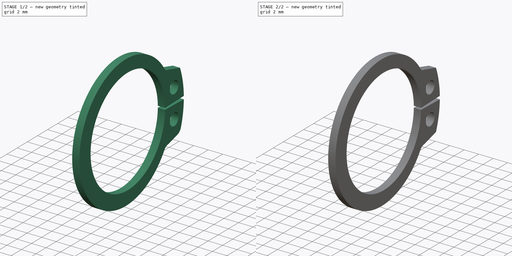
[diagram: build sequence overview — one tinted view per stage of 2, left to right]
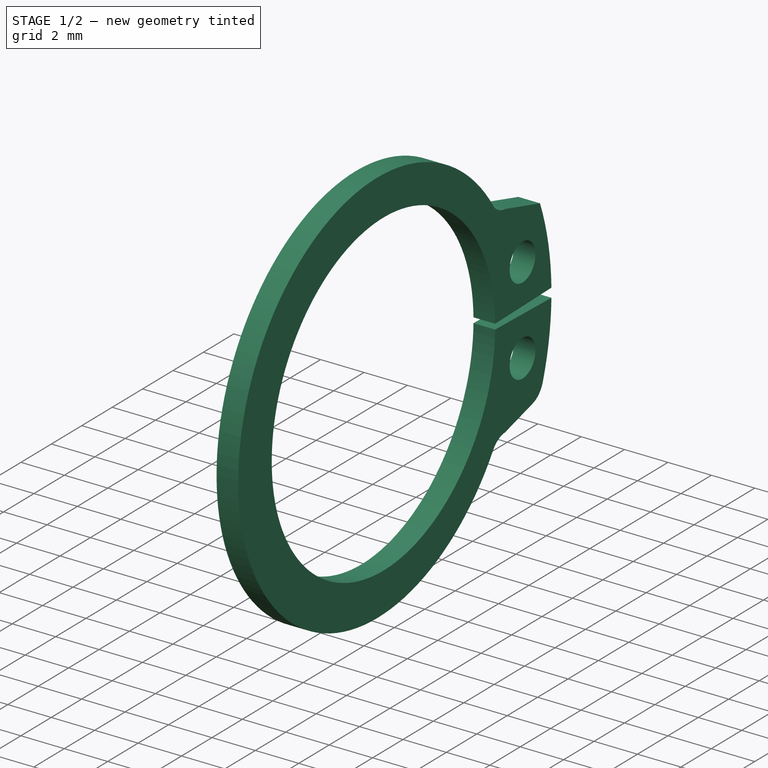
[diagram: stage 1 of 2 — iso view after this stage's code; geometry added in this stage tinted green]
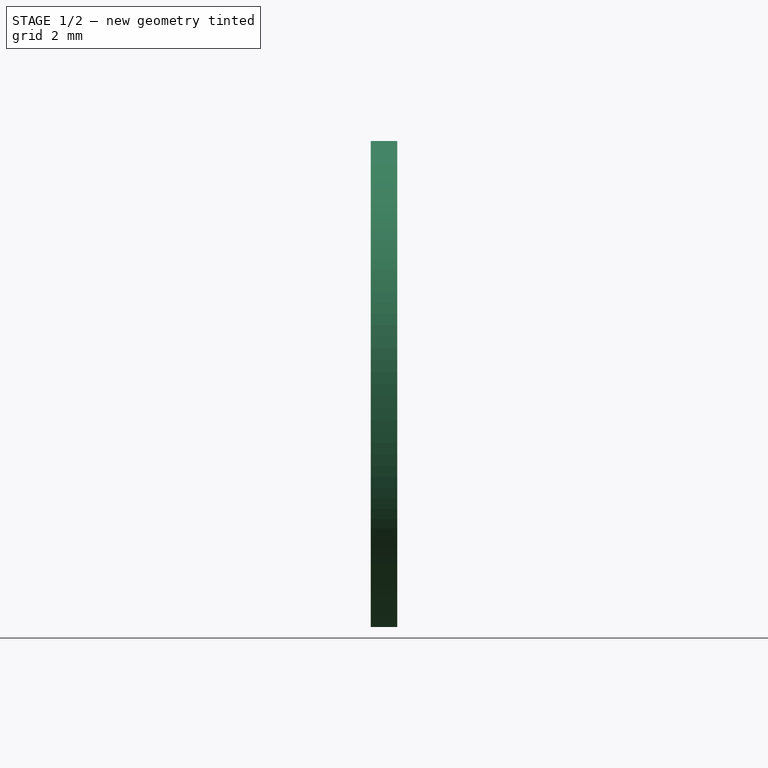
[diagram: stage 1 of 2 — front view after this stage's code; geometry added in this stage tinted green]
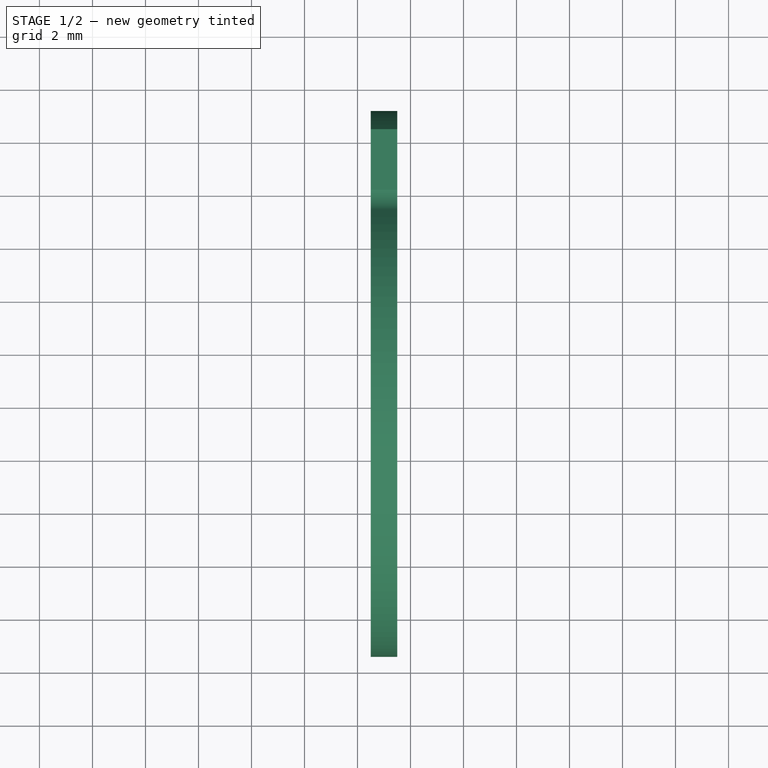
[diagram: stage 1 of 2 — top view after this stage's code; geometry added in this stage tinted green]
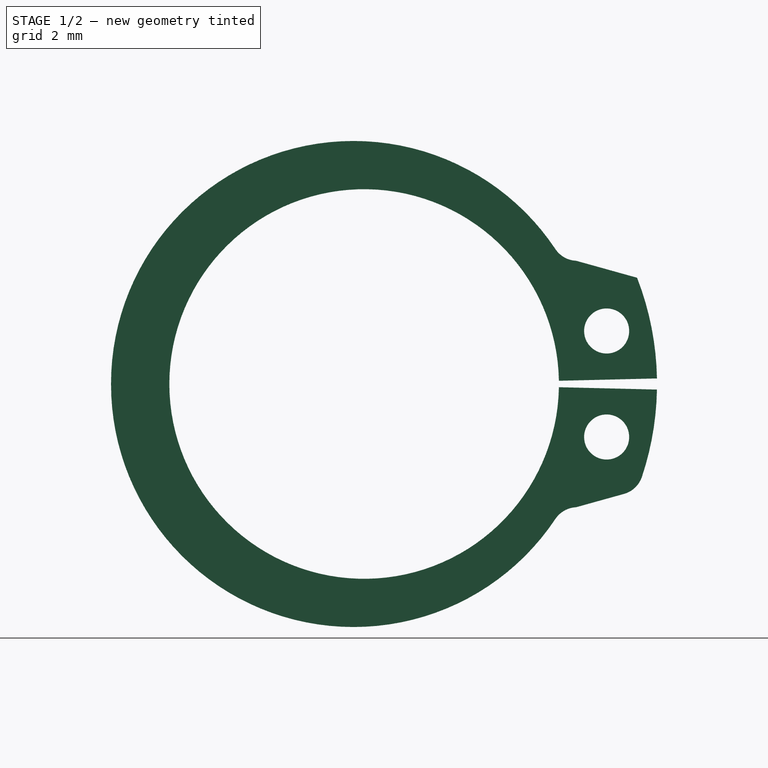
[diagram: stage 1 of 2 — right view after this stage's code; geometry added in this stage tinted green]
FCSTD DOCUMENT  (FreeCAD 0.15R4671 (Git))
Label: DIN471_CLASS_A_M16RetainingRings
License: CreativeCommons Attribution-ShareAlike
LicenseURL: http://creativecommons.org/licenses/by-sa/4.0/
objects: Sketcher::SketchObject×1, PartDesign::Pad×1, PartDesign::Mirrored×1, Part::Fuse×1, Part::Feature×1, PartDesign::Fillet×1
note: 7 computed .brp shape members not serialized (recipe doc carries the construction recipe); baked Part::Feature solids carry a one-line shape summary decoded from their .brp

FEATURE [Sketcher::SketchObject] Sketch
  Placement = pos=(0.5,0,0) rot=(0.57735,0.57735,0.57735;2.0944rad)
  sketch-geometry (8):
    g0: ArcOfCircle CenterX=0 CenterY=0 CenterZ=0 NormalX=0 NormalY=0 NormalZ=1 Radius=7.35 StartAngle=0.0164959 EndAngle=3.14159
    g1: ArcOfCircle CenterX=0 CenterY=0 CenterZ=0 NormalX=0 NormalY=0 NormalZ=1 Radius=11.051 StartAngle=0.019004 EndAngle=0.371339
    g2: ArcOfCircle CenterX=-0.400021 CenterY=0.0196379 CenterZ=0 NormalX=0 NormalY=0 NormalZ=1 Radius=9.15 StartAngle=0.58864 EndAngle=3.14374
    g3: LineSegment StartX=7.349 StartY=0.121239 StartZ=0 EndX=11.049 EndY=0.21 EndZ=0
    g4: Circle CenterX=9.15 CenterY=2 CenterZ=0 NormalX=0 NormalY=0 NormalZ=1 Radius=0.85
    g5: LineSegment StartX=7.99779 StartY=4.65 StartZ=0 EndX=10.2978 EndY=4.01 EndZ=0
    g6: ArcOfCircle CenterX=8.04593 CenterY=5.64884 CenterZ=0 NormalX=0 NormalY=0 NormalZ=1 Radius=1 StartAngle=3.72257 EndAngle=4.66423
    g7: LineSegment StartX=-9.55 StartY=3e-12 StartZ=0 EndX=-7.35 EndY=-2e-12 EndZ=0
  constraints (26):
    c: Coincident(g0,g-1)
    c: PointOnObject(g0,g-1)
    c: Coincident(g1,g-1)
    c: PointOnObject(g2,g-1)
    c: Coincident(g3,g0)
    c: Coincident(g1,g3)
    c: Coincident(g5,g1)
    c: DistanceX(g3) = 3.7
    c: Radius(g4) = 0.85
    c: Radius(g0) = 7.35
    c: DistanceX(g-1,g0) = 7.349
    c: DistanceY(g-1,g1) = 0.21
    c: DistanceX(g2,g0) = 2.2
    c: Radius(g2) = 9.15
    c: DistanceY(g1,g1) = -3.8
    c: DistanceX(g5) = 2.3
    c: DistanceY(g-1,g2) = 5.1
    c: DistanceX(g-1,g2) = 7.21
    c: DistanceY(g-1,g4) = 2
    c: DistanceX(g-1,g4) = 9.15
    c: Coincident(g6,g2)
    c: Coincident(g6,g5)
    c: Radius(g6) = 1
    c: DistanceY(g-1,g5) = 4.65
    c: Coincident(g7,g2)
    c: Coincident(g7,g0)
FEATURE [PartDesign::Pad] Pad
  Length = 1
  Length2 = 100
  Placement = pos=(0.5,0,0) rot=(0.57735,0.57735,0.57735;2.0944rad)
  Sketch = -> Sketch
  Type = 0
FEATURE [Part::Feature] Fusion001
  shape: bbox 1 x 20.6 x 18.34 mm, 15 faces (baked)
FEATURE [PartDesign::Fillet] Fillet
  Base = -> Fusion001 [Edge25,Edge8]
  Radius = 1
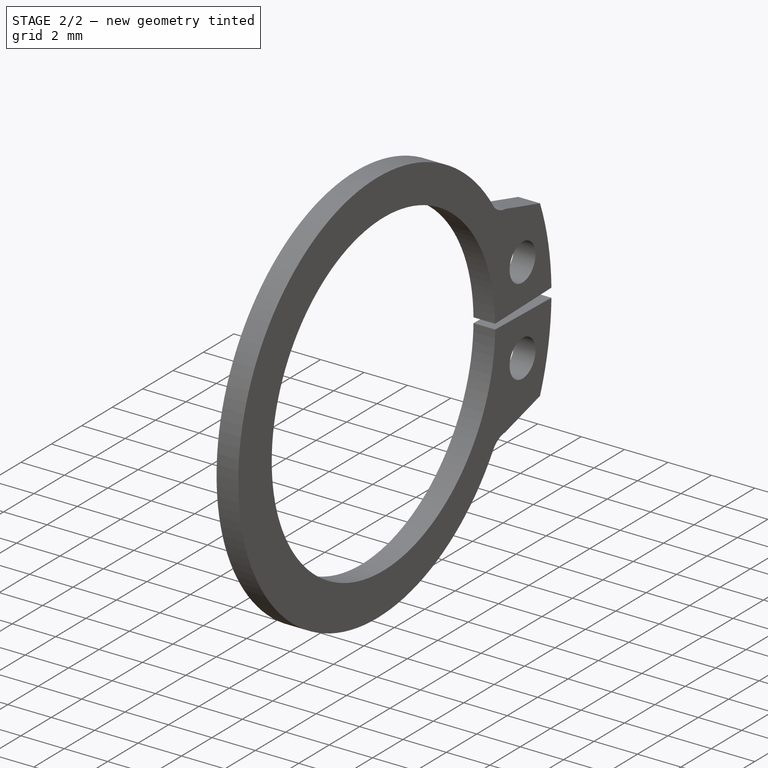
[diagram: stage 2 of 2 — iso view after this stage's code; geometry added in this stage tinted green]
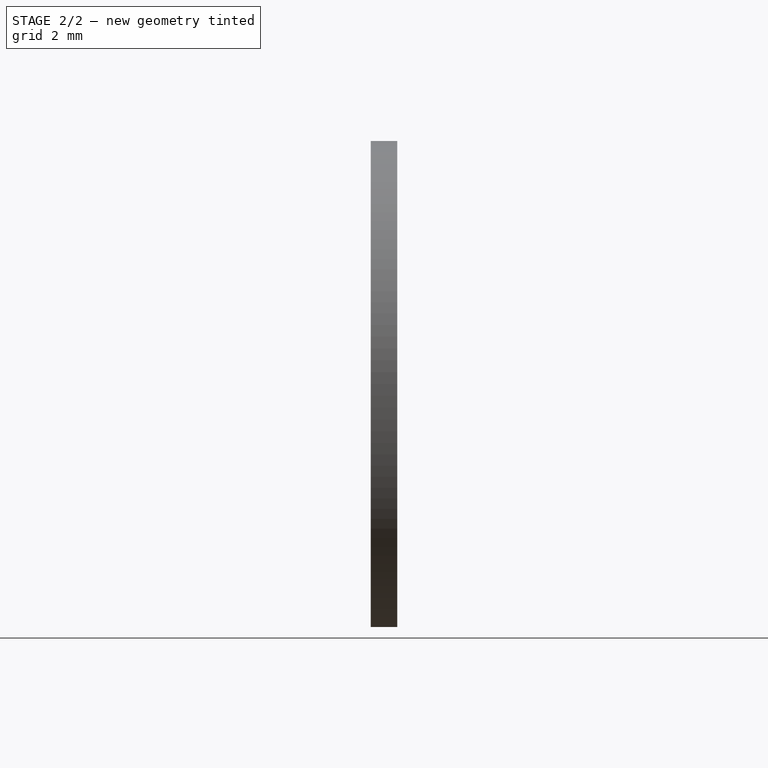
[diagram: stage 2 of 2 — front view after this stage's code; geometry added in this stage tinted green]
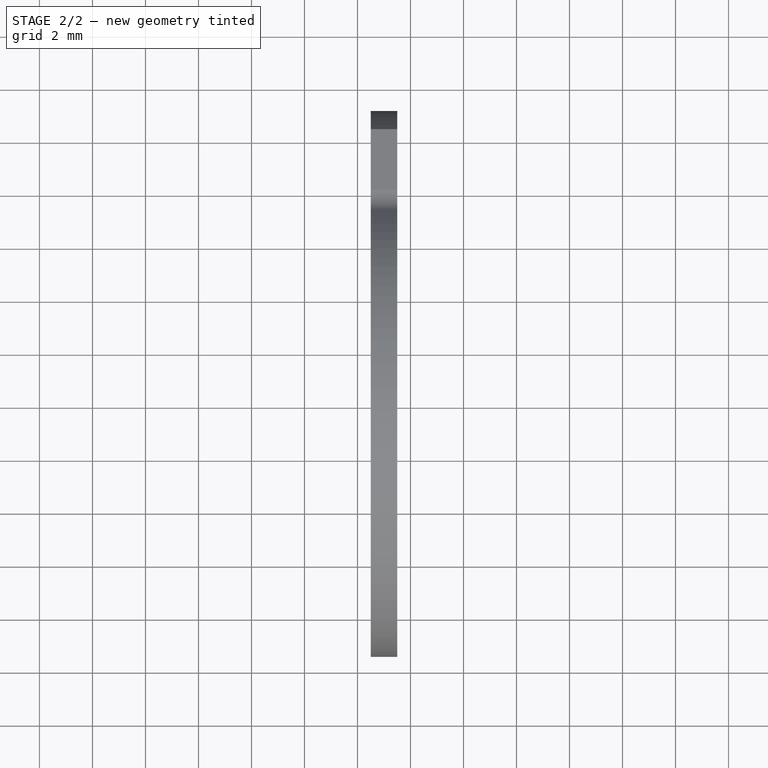
[diagram: stage 2 of 2 — top view after this stage's code; geometry added in this stage tinted green]
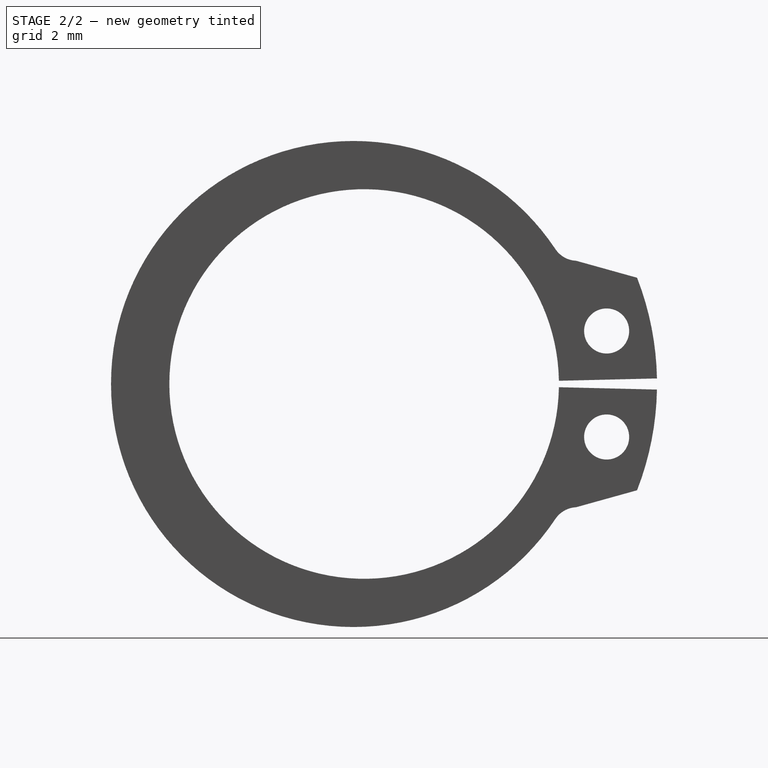
[diagram: stage 2 of 2 — right view after this stage's code; geometry added in this stage tinted green]
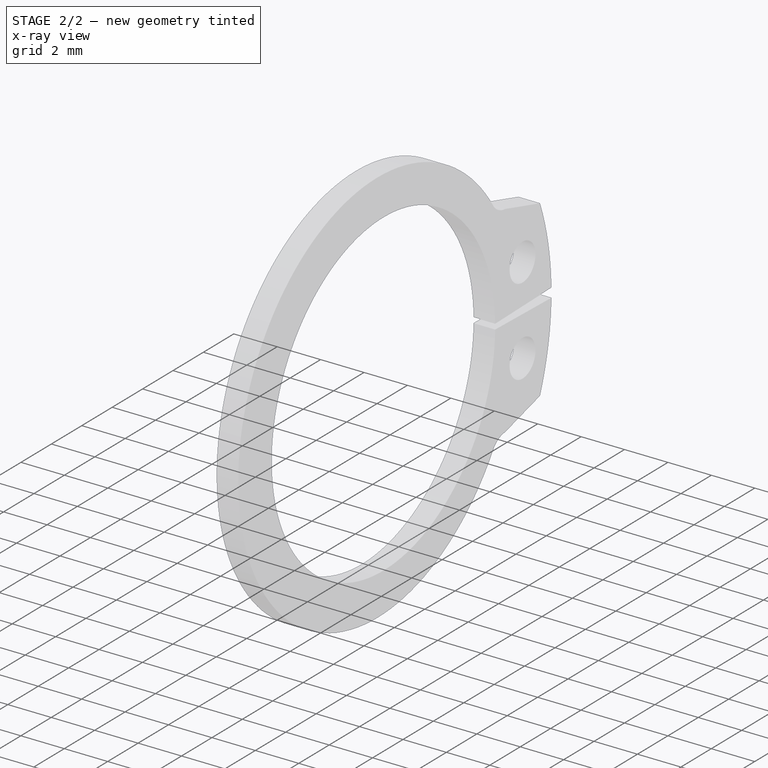
[diagram: stage 2 of 2 — x-ray composite at the iso view; earlier geometry ghosted, this stage's added geometry solid]
FEATURE [PartDesign::Mirrored] Mirrored
  MirrorPlane = -> Sketch [H_Axis]
  Originals = -> [Pad]
  Placement = pos=(0.5,0,0) rot=(0.57735,0.57735,0.57735;2.0944rad)
FEATURE [Part::Fuse] Fusion
  Base = -> Mirrored
  Tool = -> Pad
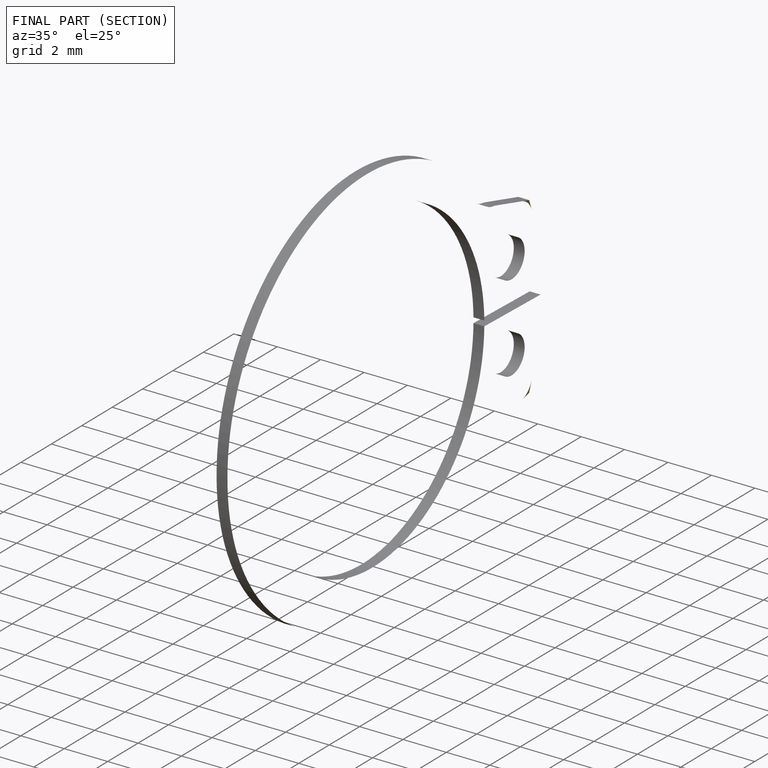
[diagram: finished part — half-section view (interior)]
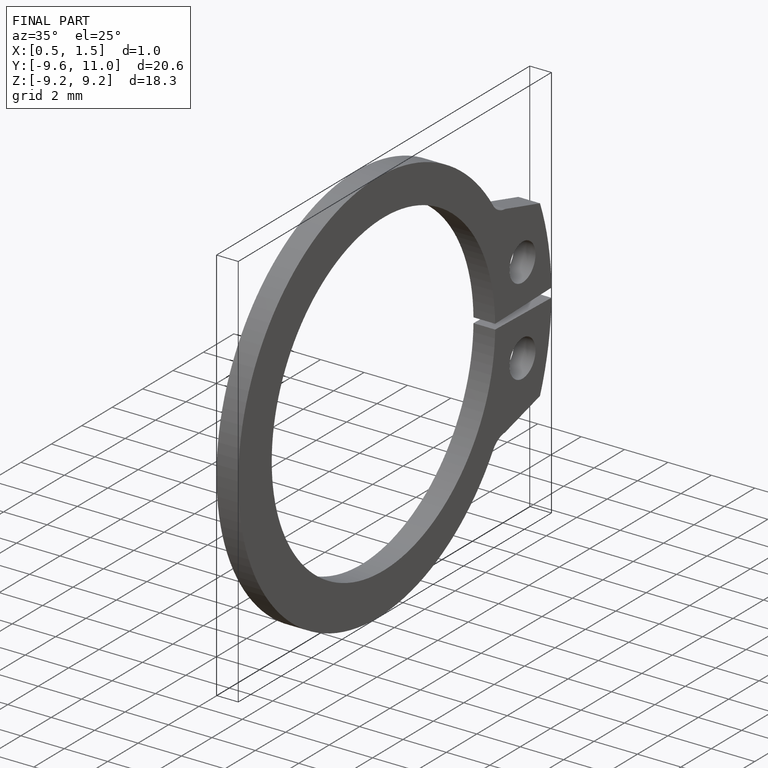
[diagram: finished part — iso view with bounding-box wireframe]
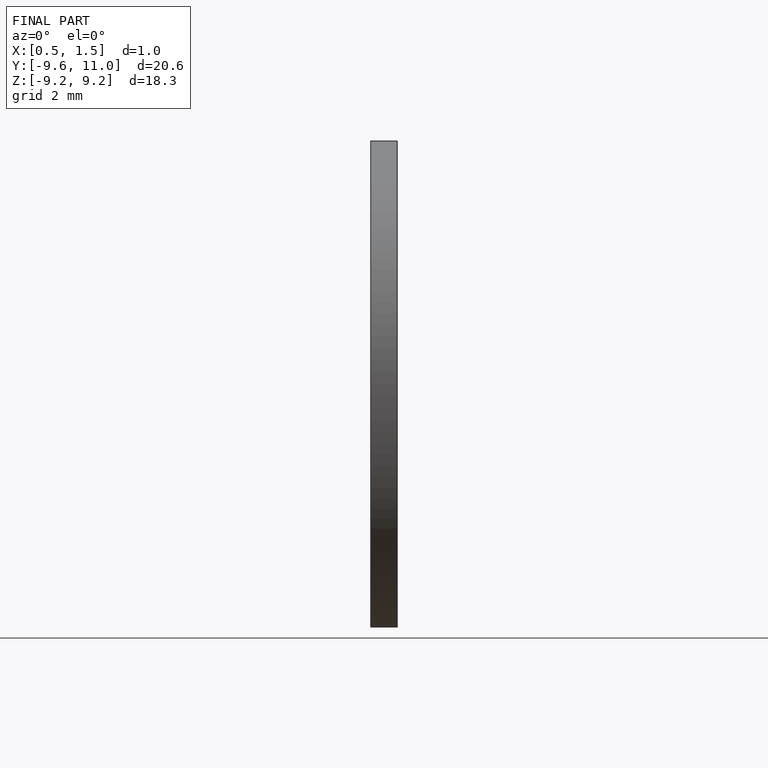
[diagram: finished part — front view with bounding-box wireframe]
